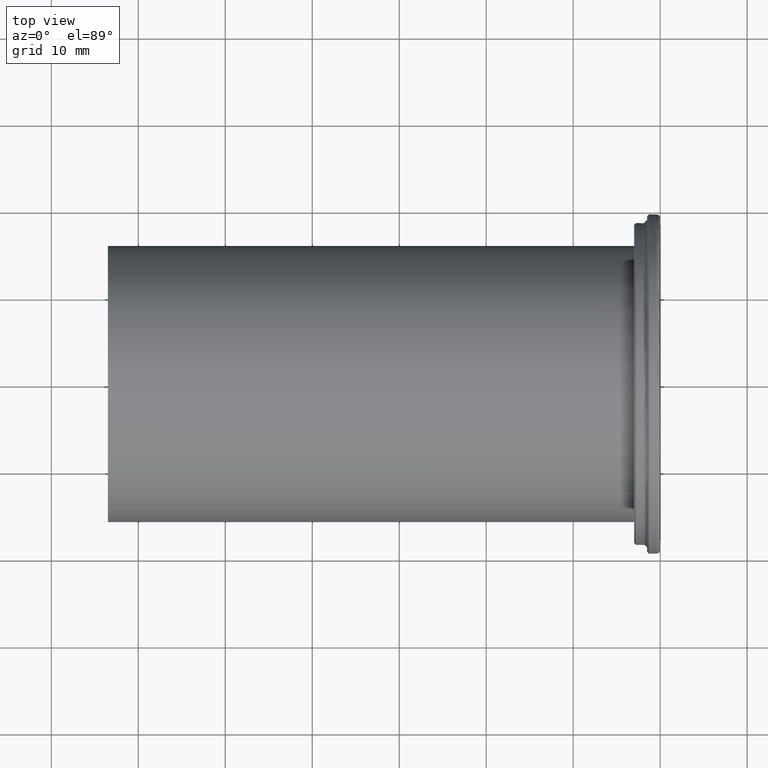
[diagram: clean part render]
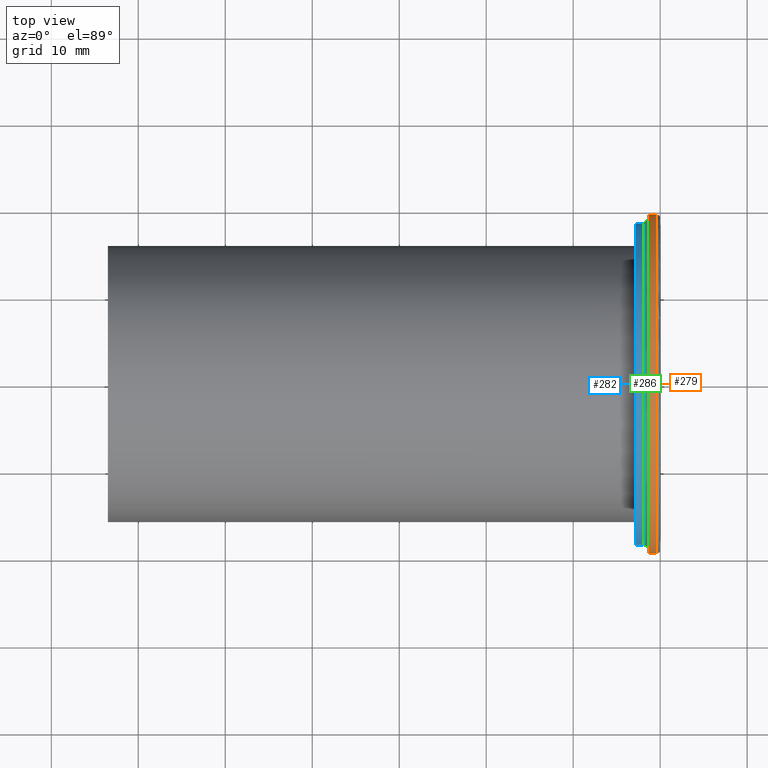
[diagram: same view with three faces highlighted in distinct colors, each labeled with its STEP entity id]
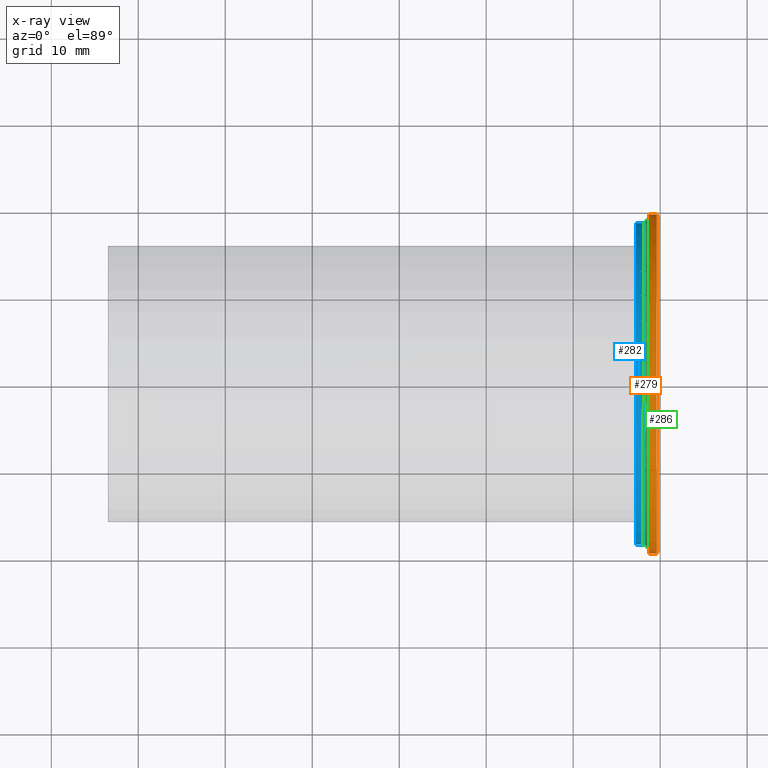
[diagram: x-ray of the same camera — body ghosted, the three highlighted faces saturated]
A machine part, top view with three faces highlighted in distinct colors.
The next image is the same camera in x-ray (body ghosted, the three faces saturated) — at least one of them is partly hidden behind the body in this view.
Their STEP definitions:

[orange] entity #279 — the highlighted cylindrical surface (bore or boss wall) has radius 19.5 mm, axis along (1, 0, 0).
#97=FACE_OUTER_BOUND('',#111,.T.);
#111=EDGE_LOOP('',(#231,#232,#233,#234,#235,#236));
#129=LINE('',#501,#137);
#137=VECTOR('',#396,19.5);
#146=CIRCLE('',#321,19.5);
#147=CIRCLE('',#322,19.5);
#149=CIRCLE('',#325,19.5);
#150=CIRCLE('',#326,19.5);
#169=VERTEX_POINT('',#490);
#170=VERTEX_POINT('',#491);
#172=VERTEX_POINT('',#498);
#173=VERTEX_POINT('',#499);
#191=EDGE_CURVE('',#169,#170,#146,.T.);
#192=EDGE_CURVE('',#170,#169,#147,.T.);
#195=EDGE_CURVE('',#172,#173,#149,.T.);
#196=EDGE_CURVE('',#172,#170,#129,.T.);
#197=EDGE_CURVE('',#173,#172,#150,.T.);
#231=ORIENTED_EDGE('',*,*,#195,.F.);
#232=ORIENTED_EDGE('',*,*,#196,.T.);
#233=ORIENTED_EDGE('',*,*,#191,.F.);
#234=ORIENTED_EDGE('',*,*,#192,.F.);
#235=ORIENTED_EDGE('',*,*,#196,.F.);
#236=ORIENTED_EDGE('',*,*,#197,.F.);
#272=CYLINDRICAL_SURFACE('',#324,19.5);
#279=ADVANCED_FACE('',(#97),#272,.T.);
#321=AXIS2_PLACEMENT_3D('',#492,#385,#386);
#322=AXIS2_PLACEMENT_3D('',#493,#387,#388);
#324=AXIS2_PLACEMENT_3D('',#497,#392,#393);
#325=AXIS2_PLACEMENT_3D('',#500,#394,#395);
#326=AXIS2_PLACEMENT_3D('',#502,#397,#398);
#385=DIRECTION('center_axis',(-1.,0.,0.));
#386=DIRECTION('ref_axis',(0.,-1.,0.));
#387=DIRECTION('center_axis',(-1.,0.,0.));
#388=DIRECTION('ref_axis',(0.,-1.,0.));
#392=DIRECTION('center_axis',(1.,0.,0.));
#393=DIRECTION('ref_axis',(0.,1.,0.));
#394=DIRECTION('center_axis',(1.,0.,0.));
#395=DIRECTION('ref_axis',(0.,-1.,1.83697019872103E-16));
#396=DIRECTION('',(-1.,0.,0.));
#397=DIRECTION('center_axis',(1.,0.,0.));
#398=DIRECTION('ref_axis',(0.,-1.,1.83697019872103E-16));
#490=CARTESIAN_POINT('',(-1.3,19.5,-2.38806125833734E-15));
#491=CARTESIAN_POINT('',(-1.3,-19.5,-2.38806125833734E-15));
#492=CARTESIAN_POINT('Origin',(-1.3,0.,0.));
#493=CARTESIAN_POINT('Origin',(-1.3,0.,0.));
#497=CARTESIAN_POINT('Origin',(-0.75,0.,0.));
#498=CARTESIAN_POINT('',(-0.399999999999996,-19.5,-2.38806125833734E-15));
#499=CARTESIAN_POINT('',(-0.399999999999996,-2.38806125833734E-15,19.5));
#500=CARTESIAN_POINT('Origin',(-0.399999999999996,0.,0.));
#501=CARTESIAN_POINT('',(-0.75,-19.5,-2.38806125833734E-15));
#502=CARTESIAN_POINT('Origin',(-0.399999999999996,0.,0.));

[blue] entity #282 — the highlighted cylindrical surface (bore or boss wall) has radius 18.5 mm, axis along (1, 0, 0).
#100=FACE_OUTER_BOUND('',#115,.T.);
#115=EDGE_LOOP('',(#244,#245,#246,#247,#248,#249));
#131=LINE('',#518,#139);
#139=VECTOR('',#416,18.5);
#152=CIRCLE('',#330,18.5);
#153=CIRCLE('',#331,18.5);
#155=CIRCLE('',#334,18.5);
#156=CIRCLE('',#335,18.5);
#175=VERTEX_POINT('',#507);
#176=VERTEX_POINT('',#508);
#178=VERTEX_POINT('',#515);
#179=VERTEX_POINT('',#516);
#199=EDGE_CURVE('',#175,#176,#152,.T.);
#200=EDGE_CURVE('',#176,#175,#153,.T.);
#203=EDGE_CURVE('',#178,#179,#155,.T.);
#204=EDGE_CURVE('',#178,#176,#131,.T.);
#205=EDGE_CURVE('',#179,#178,#156,.T.);
#244=ORIENTED_EDGE('',*,*,#203,.F.);
#245=ORIENTED_EDGE('',*,*,#204,.T.);
#246=ORIENTED_EDGE('',*,*,#199,.F.);
#247=ORIENTED_EDGE('',*,*,#200,.F.);
#248=ORIENTED_EDGE('',*,*,#204,.F.);
#249=ORIENTED_EDGE('',*,*,#205,.F.);
#273=CYLINDRICAL_SURFACE('',#333,18.5);
#282=ADVANCED_FACE('',(#100),#273,.T.);
#330=AXIS2_PLACEMENT_3D('',#509,#405,#406);
#331=AXIS2_PLACEMENT_3D('',#510,#407,#408);
#333=AXIS2_PLACEMENT_3D('',#514,#412,#413);
#334=AXIS2_PLACEMENT_3D('',#517,#414,#415);
#335=AXIS2_PLACEMENT_3D('',#519,#417,#418);
#405=DIRECTION('center_axis',(-1.,0.,0.));
#406=DIRECTION('ref_axis',(0.,-1.,0.));
#407=DIRECTION('center_axis',(-1.,0.,0.));
#408=DIRECTION('ref_axis',(0.,-1.,0.));
#412=DIRECTION('center_axis',(1.,0.,0.));
#413=DIRECTION('ref_axis',(0.,1.,0.));
#414=DIRECTION('center_axis',(1.,0.,0.));
#415=DIRECTION('ref_axis',(0.,-1.,1.83697019872103E-16));
#416=DIRECTION('',(-1.,0.,0.));
#417=DIRECTION('center_axis',(1.,0.,0.));
#418=DIRECTION('ref_axis',(0.,-1.,1.83697019872103E-16));
#507=CARTESIAN_POINT('',(-2.8,18.5,-2.2655965784226E-15));
#508=CARTESIAN_POINT('',(-2.8,-18.5,-2.2655965784226E-15));
#509=CARTESIAN_POINT('Origin',(-2.8,0.,0.));
#510=CARTESIAN_POINT('Origin',(-2.8,0.,0.));
#514=CARTESIAN_POINT('Origin',(-2.25,0.,0.));
#515=CARTESIAN_POINT('',(-1.9,-18.5,-2.2655965784226E-15));
#516=CARTESIAN_POINT('',(-1.9,-2.2655965784226E-15,18.5));
#517=CARTESIAN_POINT('Origin',(-1.9,0.,0.));
#518=CARTESIAN_POINT('',(-2.25,-18.5,-2.2655965784226E-15));
#519=CARTESIAN_POINT('Origin',(-1.9,0.,0.));

[green] entity #286 — the highlighted toroidal blend (fillet) surface has major radius 18.9 mm and minor (blend) radius 0.4 mm.
#81=TOROIDAL_SURFACE('',#342,18.9,0.4);
#104=FACE_OUTER_BOUND('',#121,.T.);
#121=EDGE_LOOP('',(#259,#260,#261,#262,#263));
#151=CIRCLE('',#328,18.9);
#155=CIRCLE('',#334,18.5);
#156=CIRCLE('',#335,18.5);
#160=CIRCLE('',#343,0.4);
#174=VERTEX_POINT('',#504);
#178=VERTEX_POINT('',#515);
#179=VERTEX_POINT('',#516);
#198=EDGE_CURVE('',#174,#174,#151,.T.);
#203=EDGE_CURVE('',#178,#179,#155,.T.);
#205=EDGE_CURVE('',#179,#178,#156,.T.);
#209=EDGE_CURVE('',#179,#174,#160,.T.);
#259=ORIENTED_EDGE('',*,*,#203,.T.);
#260=ORIENTED_EDGE('',*,*,#209,.T.);
#261=ORIENTED_EDGE('',*,*,#198,.T.);
#262=ORIENTED_EDGE('',*,*,#209,.F.);
#263=ORIENTED_EDGE('',*,*,#205,.T.);
#286=ADVANCED_FACE('',(#104),#81,.F.);
#328=AXIS2_PLACEMENT_3D('',#505,#401,#402);
#334=AXIS2_PLACEMENT_3D('',#517,#414,#415);
#335=AXIS2_PLACEMENT_3D('',#519,#417,#418);
#342=AXIS2_PLACEMENT_3D('',#528,#431,#432);
#343=AXIS2_PLACEMENT_3D('',#529,#433,#434);
#401=DIRECTION('center_axis',(-1.,0.,0.));
#402=DIRECTION('ref_axis',(0.,-1.,1.83697019872103E-16));
#414=DIRECTION('center_axis',(1.,0.,0.));
#415=DIRECTION('ref_axis',(0.,-1.,1.83697019872103E-16));
#417=DIRECTION('center_axis',(1.,0.,0.));
#418=DIRECTION('ref_axis',(0.,-1.,1.83697019872103E-16));
#431=DIRECTION('center_axis',(1.,0.,0.));
#432=DIRECTION('ref_axis',(0.,0.,-1.));
#433=DIRECTION('center_axis',(0.,-1.,-1.22464679914735E-16));
#434=DIRECTION('ref_axis',(0.,-1.22464679914735E-16,1.));
#504=CARTESIAN_POINT('',(-1.5,-2.3145824503885E-15,18.9));
#505=CARTESIAN_POINT('Origin',(-1.5,0.,0.));
#515=CARTESIAN_POINT('',(-1.9,-18.5,-2.2655965784226E-15));
#516=CARTESIAN_POINT('',(-1.9,-2.2655965784226E-15,18.5));
#517=CARTESIAN_POINT('Origin',(-1.9,0.,0.));
#519=CARTESIAN_POINT('Origin',(-1.9,0.,0.));
#528=CARTESIAN_POINT('Origin',(-1.9,0.,0.));
#529=CARTESIAN_POINT('Origin',(-1.9,-2.3145824503885E-15,18.9));